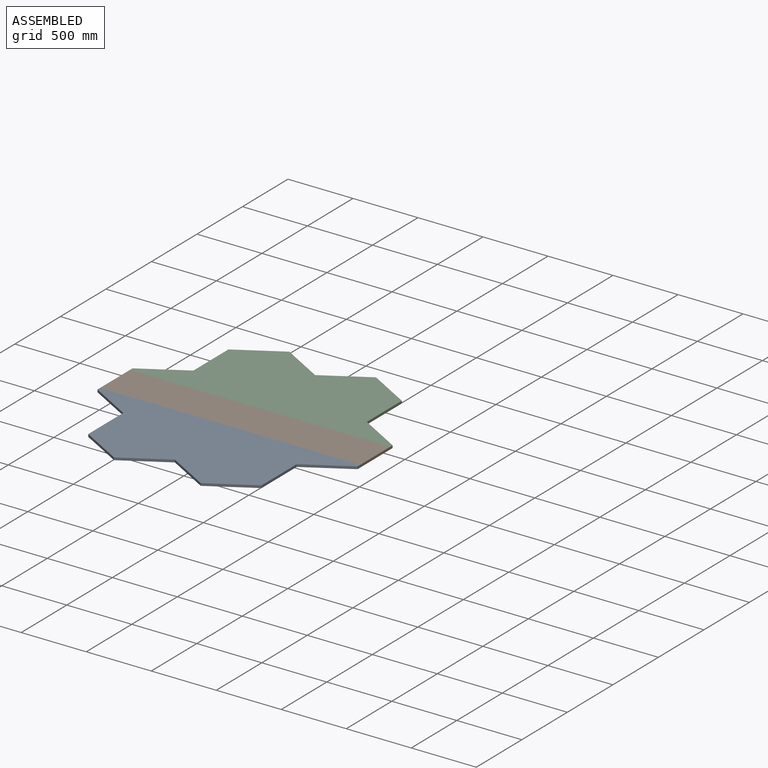
[diagram: assembled view]
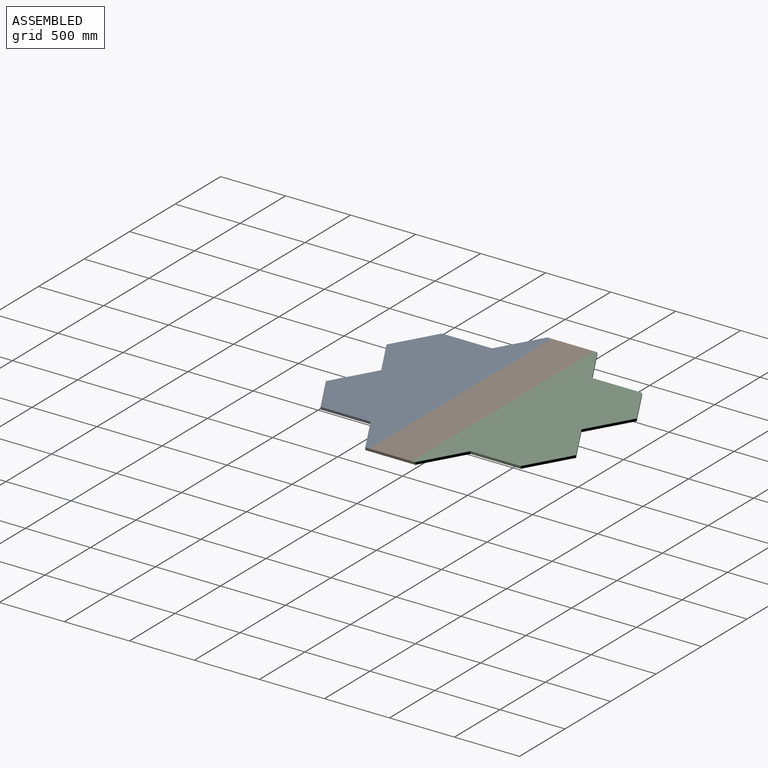
[diagram: assembled view, second angle]
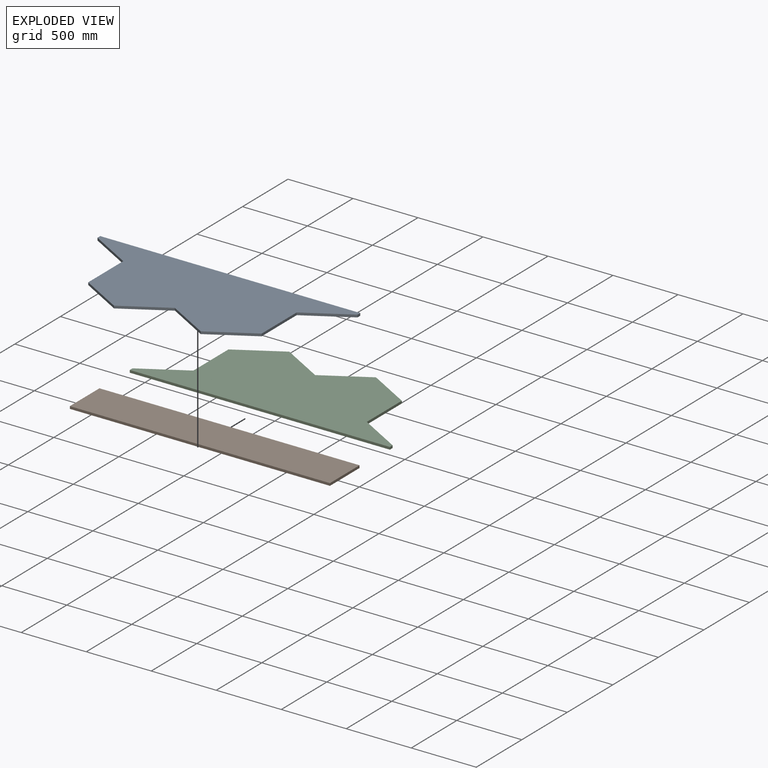
[diagram: exploded view]
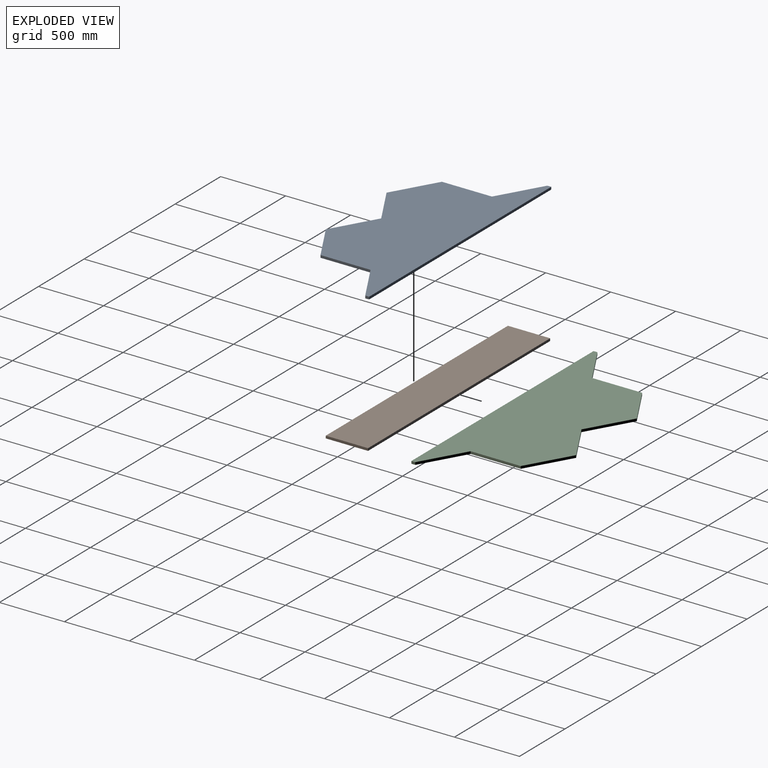
[diagram: exploded view, second angle]
ASSEMBLY  parts=3 mates=6
PART A: 13 faces, bbox 2000.5x800x19 mm
  f0: plane 30x19mm, normal (-1,0,0), area 570mm2, adj f1,f10,f11,f12
  f1: plane 333.42x192.5mm, normal (-0.5,-0.87,0), area 7315mm2, adj f0,f2,f10,f11
  f2: plane 385x19mm, normal (-1,0,0), area 7315mm2, adj f1,f3,f10,f11
  f3: plane 333.42x192.5mm, normal (-0.5,-0.87,0), area 7315mm2, adj f2,f4,f10,f11
  f4: plane 333.42x192.5mm, normal (0.5,-0.87,0), area 7315mm2, adj f3,f5,f10,f11
  f5: plane 333.42x192.5mm, normal (-0.5,-0.87,0), area 7315mm2, adj f4,f6,f10,f11
  f6: plane 333.42x192.5mm, normal (0.5,-0.87,0), area 7315mm2, adj f5,f7,f10,f11
  f7: plane 385x19mm, normal (1,0,0), area 7315mm2, adj f6,f8,f10,f11
  f8: plane 333.42x192.5mm, normal (0.5,-0.87,0), area 7315mm2, adj f7,f9,f10,f11
  f9: plane 30x19mm, normal (1,0,0), area 570mm2, adj f8,f10,f11,f12
  f10: plane 2000.52x800mm, normal (0,0,1), area 1022765.2mm2, adj f0,f1,f2,f3,f4,f5,f6,f7
  f11: plane 2000.52x800mm, normal (0,0,-1), area 1022765.2mm2, adj f0,f1,f2,f3,f4,f5,f6,f7
  f12: plane 2000.52x19mm, normal (0,1,0), area 38009.9mm2, adj f0,f9,f10,f11
PART B: 6 faces, bbox 2000.5x325x19 mm
  f0: plane 325x19mm, normal (-1,0,0), area 6175mm2, adj f2,f3,f4,f5
  f1: plane 325x19mm, normal (1,0,0), area 6175mm2, adj f2,f3,f4,f5
  f2: plane 2000.52x325mm, normal (0,0,1), area 650168.6mm2, adj f0,f1,f4,f5
  f3: plane 2000.52x325mm, normal (0,0,-1), area 650168.6mm2, adj f0,f1,f4,f5
  f4: plane 2000.52x19mm, normal (0,-1,0), area 38009.9mm2, adj f0,f1,f2,f3
  f5: plane 2000.52x19mm, normal (0,1,0), area 38009.9mm2, adj f0,f1,f2,f3
PART C: 13 faces, bbox 2000.5x800x19 mm
  f0: plane 333.42x192.5mm, normal (0.5,0.87,0), area 7315mm2, adj f1,f9,f10,f11
  f1: plane 385x19mm, normal (1,0,0), area 7315mm2, adj f0,f2,f10,f11
  f2: plane 333.42x192.5mm, normal (0.5,0.87,0), area 7315mm2, adj f1,f3,f10,f11
  f3: plane 333.42x192.5mm, normal (-0.5,0.87,0), area 7315mm2, adj f2,f4,f10,f11
  f4: plane 333.42x192.5mm, normal (0.5,0.87,0), area 7315mm2, adj f3,f5,f10,f11
  f5: plane 333.42x192.5mm, normal (-0.5,0.87,0), area 7315mm2, adj f4,f6,f10,f11
  f6: plane 385x19mm, normal (-1,0,0), area 7315mm2, adj f5,f7,f10,f11
  f7: plane 333.42x192.5mm, normal (-0.5,0.87,0), area 7315mm2, adj f6,f8,f10,f11
  f8: plane 30x19mm, normal (-1,0,0), area 570mm2, adj f7,f10,f11,f12
  f9: plane 30x19mm, normal (1,0,0), area 570mm2, adj f0,f10,f11,f12
  f10: plane 2000.52x800mm, normal (0,0,1), area 1022765.2mm2, adj f0,f1,f2,f3,f4,f5,f6,f7
  f11: plane 2000.52x800mm, normal (0,0,-1), area 1022765.2mm2, adj f0,f1,f2,f3,f4,f5,f6,f7
  f12: plane 2000.52x19mm, normal (0,-1,0), area 38009.9mm2, adj f8,f9,f10,f11
PLACE A t=(-109.7,329.15,-264.52)mm
PLACE B t=(-109.7,329.15,-264.52)mm fixed
PLACE C t=(-109.7,329.15,-264.52)mm
MATE planar B.f2 <-> A.f10  axis (0,0,1) through (-109.7,329.15,-245.52)mm
MATE planar C.f9 <-> B.f1  axis (1,0,0) through (890.56,506.65,-255.02)mm
MATE planar C.f10 <-> B.f2  axis (0,0,1) through (557.14,714.15,-245.52)mm
MATE planar B.f1 <-> A.f9  axis (1,0,0) through (890.56,329.15,-255.02)mm
MATE planar B.f4 <-> A.f12  axis (0,-1,0) through (-109.7,166.65,-255.02)mm
MATE planar B.f5 <-> C.f12  axis (0,1,0) through (-109.7,491.65,-255.02)mm
